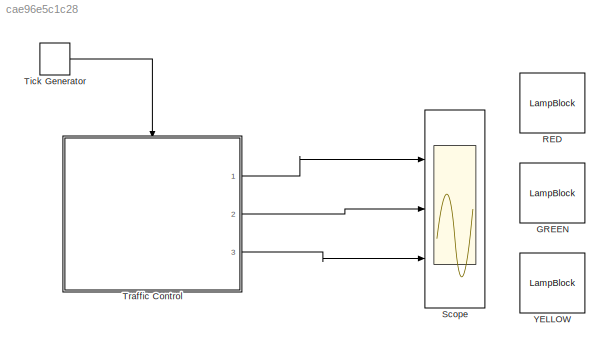
MODEL slx_cae96e5c1c28
KIND model
CONFIG AbsTol = auto
CONFIG EnableMultiTasking = off
CONFIG FixedStep = auto
CONFIG MaxStep = auto
CONFIG MinStep = auto
CONFIG RelTol = 1e-3
CONFIG SampleTimeConstraint = Unconstrained
CONFIG Solver = VariableStepAuto
CONFIG SolverName = VariableStepAuto
CONFIG StartTime = 0.0
CONFIG StopTime = 100
BLOCK [LampBlock] GREEN
  LabelPosition = Hide
BLOCK [LampBlock] RED
  LabelPosition = Hide
BLOCK [Scope] Scope
  Floating = off
  NumInputPorts = 3
  Ports = [3]
  ScopeSpecificationString = Simulink.scopes.TimeScopeBlockCfg('CurrentConfiguration', extmgr.ConfigurationSet(extmgr.Configuration('Core','General UI',true),extmgr.Configuration('Core','Source UI',true),extmgr.Configuration('Sources','WiredSimulink',true),extmgr.Configuration('Visuals','Time Domain',true,'SerializedDisplays',{struct('MinYLimReal','-0.125','MaxYLimReal','1.125','YLabelReal','','MinYLimMag','0','MaxYLimMag','1...<+5176ch>
BLOCK [DiscretePulseGenerator] Tick Generator
  Period = 0.04
  Ports = [0, 1]
  PulseType = Time based
  PulseWidth = 50
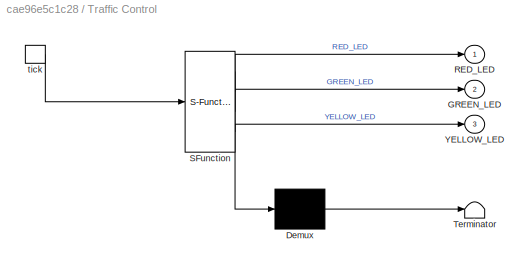
BLOCK [SubSystem] Traffic Control
  BlockKeywords = __PRM__SERIALIZED__DATA__:Stateflow Chart,Stateflow Diagram
  ErrorFcn = Stateflow.Translate.translate
  PermitHierarchicalResolution = ExplicitOnly
  Ports = [0, 3, 0, 1]
  RequestExecContextInheritance = off
  SFBlockType = Chart
  TreatAsAtomicUnit = on
BLOCK [Demux] Traffic Control/ Demux 
  Outputs = 1
  Ports = [1, 1]
BLOCK [S-Function] Traffic Control/ SFunction 
  EnableBusSupport = on
  FunctionName = sf_sfun
  PortCounts = [1 4]
  Ports = [1, 4]
  SFcnIsStateOwnerBlock = off
  SFunctionDeploymentMode = off
  Tag = Stateflow S-Function 3
BLOCK [Terminator] Traffic Control/ Terminator 
BLOCK [Outport] Traffic Control/GREEN_LED
  IconDisplay = Port number
  Port = 2
BLOCK [Outport] Traffic Control/RED_LED
  IconDisplay = Port number
BLOCK [Outport] Traffic Control/YELLOW_LED
  IconDisplay = Port number
  Port = 3
BLOCK [TriggerPort] Traffic Control/tick
  Ports = [0, 1]
  ShowOutputPort = on
  StatesWhenEnabling = held
  VariantControl = (inherit)
BLOCK [LampBlock] YELLOW
  LabelPosition = Hide
LINE Tick Generator:1 -> Traffic Control:trigger
LINE Traffic Control:1 -> Scope:1
LINE Traffic Control:2 -> Scope:2
LINE Traffic Control:3 -> Scope:3
CHART Traffic Control states=3 transitions=4
  STATE_LABEL 'Stop\nentry: RED_LED = 1;\nexit: RED_LED = 0;'
  STATE_LABEL 'Go\nentry: GREEN_LED = 1;\nexit: GREEN_LED = 0;'
  STATE_LABEL 'PrepareToStop\nentry: YELLOW_LED = 1;\nexit: YELLOW_LED = 0;'
